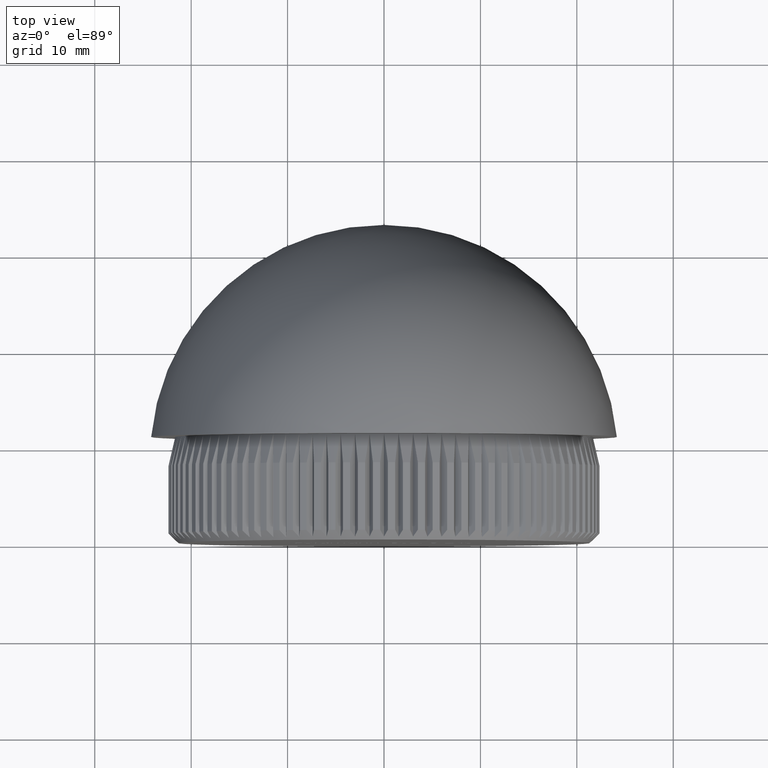
[diagram: clean part render]
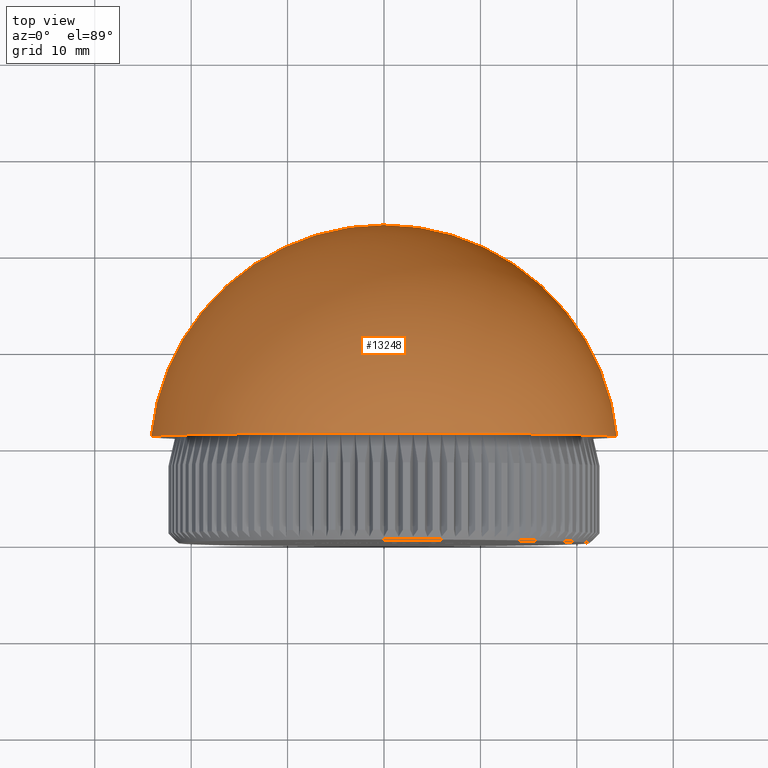
[diagram: same view with one face highlighted and labeled with its STEP entity id]
A machine part, top view. The second image highlights one B-rep face of the part: STEP entity #13248.
In plain terms, the highlighted spherical surface has radius 24.2551 mm.
Its self-contained STEP definition (entity closure, byte-faithful):
#139 = DIRECTION ( 'NONE',  ( -0.0000000000000000000, -1.000000000000000000, -0.0000000000000000000 ) ) ;
#987 = AXIS2_PLACEMENT_3D ( 'NONE', #19593, #8727, #22821 ) ;
#2185 = CARTESIAN_POINT ( 'NONE',  ( 1.485193884776177600E-015, 33.00000000000000000, 0.0000000000000000000 ) ) ;
#2784 = CARTESIAN_POINT ( 'NONE',  ( -24.14999999999999900, 11.00000000000000400, 2.957522019940857900E-015 ) ) ;
#3705 = DIRECTION ( 'NONE',  ( -1.000000000000000000, 0.0000000000000000000, 0.0000000000000000000 ) ) ;
#3715 = ORIENTED_EDGE ( 'NONE', *, *, #3887, .F. ) ;
#3887 = EDGE_CURVE ( 'NONE', #13904, #13243, #17136, .T. ) ;
#4471 = AXIS2_PLACEMENT_3D ( 'NONE', #15670, #15828, #4982 ) ;
#4982 = DIRECTION ( 'NONE',  ( 1.000000000000000000, 0.0000000000000000000, -1.224646799147353500E-016 ) ) ;
#7752 = CIRCLE ( 'NONE', #15500, 24.14999999999999900 ) ;
#8522 = ORIENTED_EDGE ( 'NONE', *, *, #16917, .T. ) ;
#8727 = DIRECTION ( 'NONE',  ( 0.0000000000000000000, 0.0000000000000000000, 1.000000000000000000 ) ) ;
#8829 = CARTESIAN_POINT ( 'NONE',  ( 0.0000000000000000000, 11.00000000000000400, 0.0000000000000000000 ) ) ;
#10751 = CIRCLE ( 'NONE', #4471, 24.25505681818181700 ) ;
#10797 = AXIS2_PLACEMENT_3D ( 'NONE', #11078, #12551, #3705 ) ;
#11078 = CARTESIAN_POINT ( 'NONE',  ( 0.0000000000000000000, 8.744943181818182900, 0.0000000000000000000 ) ) ;
#12087 = CARTESIAN_POINT ( 'NONE',  ( 24.14999999999999900, 11.00000000000000400, 0.0000000000000000000 ) ) ;
#12417 = DIRECTION ( 'NONE',  ( 0.0000000000000000000, 0.0000000000000000000, -1.000000000000000000 ) ) ;
#12551 = DIRECTION ( 'NONE',  ( 0.0000000000000000000, 0.0000000000000000000, -1.000000000000000000 ) ) ;
#13243 = VERTEX_POINT ( 'NONE', #12087 ) ;
#13248 = ADVANCED_FACE ( 'NONE', ( #15627 ), #22910, .T. ) ;
#13904 = VERTEX_POINT ( 'NONE', #2185 ) ;
#14251 = EDGE_CURVE ( 'NONE', #13243, #14509, #7752, .T. ) ;
#14509 = VERTEX_POINT ( 'NONE', #2784 ) ;
#15500 = AXIS2_PLACEMENT_3D ( 'NONE', #8829, #139, #12417 ) ;
#15627 = FACE_OUTER_BOUND ( 'NONE', #18341, .T. ) ;
#15670 = CARTESIAN_POINT ( 'NONE',  ( 0.0000000000000000000, 8.744943181818182900, 0.0000000000000000000 ) ) ;
#15828 = DIRECTION ( 'NONE',  ( 1.224646799147353200E-016, -0.0000000000000000000, 1.000000000000000000 ) ) ;
#16917 = EDGE_CURVE ( 'NONE', #13904, #14509, #10751, .T. ) ;
#17136 = CIRCLE ( 'NONE', #10797, 24.25505681818181700 ) ;
#18341 = EDGE_LOOP ( 'NONE', ( #3715, #8522, #21942 ) ) ;
#19593 = CARTESIAN_POINT ( 'NONE',  ( 0.0000000000000000000, 8.744943181818182900, 0.0000000000000000000 ) ) ;
#21942 = ORIENTED_EDGE ( 'NONE', *, *, #14251, .F. ) ;
#22821 = DIRECTION ( 'NONE',  ( 1.000000000000000000, 0.0000000000000000000, 0.0000000000000000000 ) ) ;
#22910 = SPHERICAL_SURFACE ( 'NONE', #987, 24.25505681818181700 ) ;